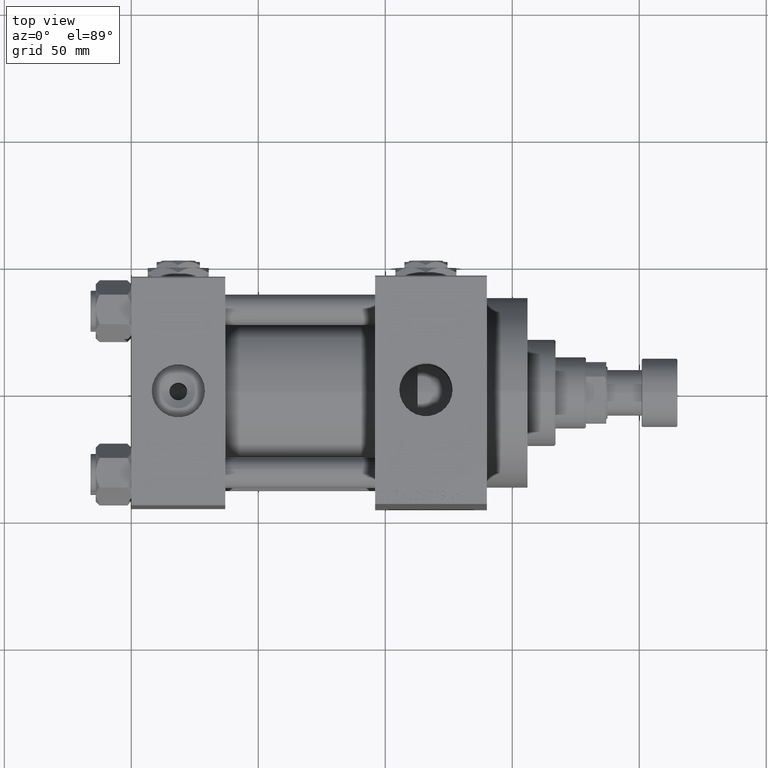
[diagram: clean part render]
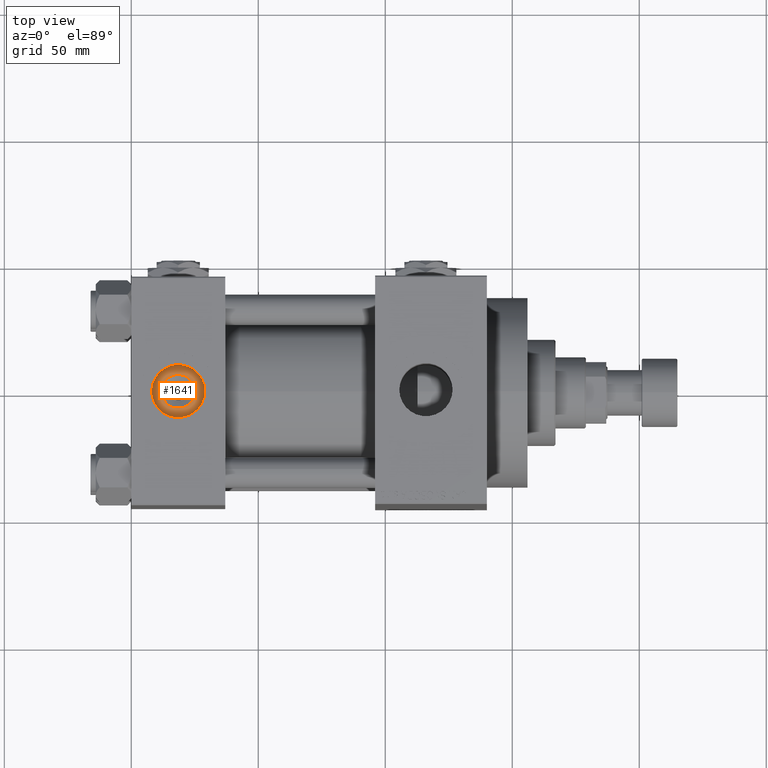
[diagram: same view with one face highlighted and labeled with its STEP entity id]
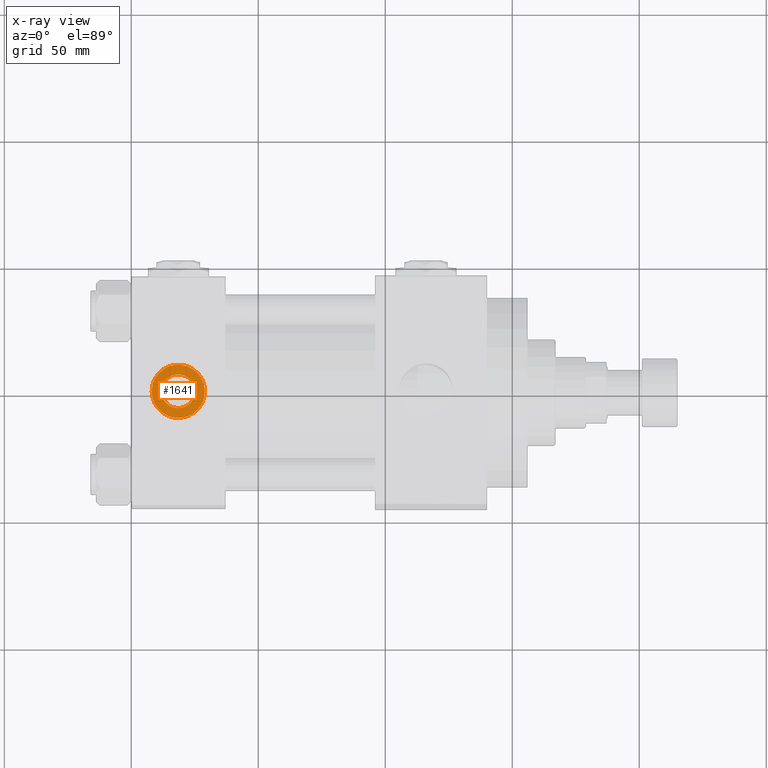
[diagram: x-ray of the same camera — body ghosted, the highlighted face saturated]
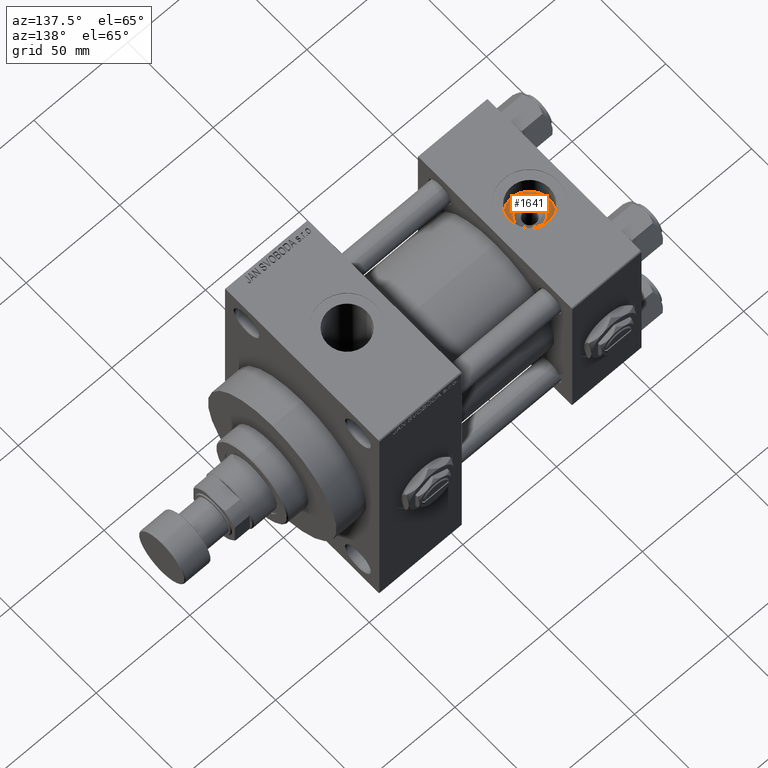
[diagram: same view with one face highlighted and labeled with its STEP entity id]
A machine part, top view. The second image highlights one B-rep face of the part: STEP entity #1641.
The next image is the same camera in x-ray: the body ghosted, the highlighted face saturated — about 0% of this face is hidden behind the body in this view.
A second angle (auxiliary view) of the same face is appended — the face is thin or edge-on in the first view.
In plain terms, the highlighted planar face has unit normal (0, 0, 1).
Its self-contained STEP definition (entity closure, byte-faithful):
#1641 = ADVANCED_FACE ( 'NONE', ( #46162, #34098 ), #15710, .T. ) ;
#2060 = VERTEX_POINT ( 'NONE', #16392 ) ;
#2072 = CIRCLE ( 'NONE', #27796, 10.48000000000000043 ) ;
#2287 = DIRECTION ( 'NONE',  ( 1.000000000000000000, 0.000000000000000000, 0.000000000000000000 ) ) ;
#3242 = DIRECTION ( 'NONE',  ( 1.000000000000000000, 0.000000000000000000, 0.000000000000000000 ) ) ;
#3385 = VERTEX_POINT ( 'NONE', #18249 ) ;
#5275 = ORIENTED_EDGE ( 'NONE', *, *, #35841, .T. ) ;
#9281 = CIRCLE ( 'NONE', #37398, 6.639999999999979252 ) ;
#10415 = DIRECTION ( 'NONE',  ( 1.000000000000000000, 0.000000000000000000, 0.000000000000000000 ) ) ;
#11405 = CARTESIAN_POINT ( 'NONE',  ( 18.50000000000000000, -8.673617379884038628E-15, 34.20000000000000995 ) ) ;
#14388 = CARTESIAN_POINT ( 'NONE',  ( 25.13999999999997925, -8.673617379884038628E-15, 34.20000000000000995 ) ) ;
#14667 = CARTESIAN_POINT ( 'NONE',  ( 8.019999999999999574, -7.390187534377611561E-15, 34.20000000000000995 ) ) ;
#15068 = EDGE_CURVE ( 'NONE', #2060, #23815, #47755, .T. ) ;
#15220 = DIRECTION ( 'NONE',  ( 1.000000000000000000, 0.000000000000000000, -0.000000000000000000 ) ) ;
#15710 = PLANE ( 'NONE',  #35476 ) ;
#16392 = CARTESIAN_POINT ( 'NONE',  ( 11.86000000000001897, -7.860451905250197307E-15, 34.20000000000000995 ) ) ;
#16547 = EDGE_CURVE ( 'NONE', #23815, #2060, #9281, .T. ) ;
#18249 = CARTESIAN_POINT ( 'NONE',  ( 28.98000000000000043, -8.673617379884038628E-15, 34.20000000000000995 ) ) ;
#23093 = CARTESIAN_POINT ( 'NONE',  ( 18.50000000000000000, -8.673617379884038628E-15, 34.20000000000000995 ) ) ;
#23815 = VERTEX_POINT ( 'NONE', #14388 ) ;
#27796 = AXIS2_PLACEMENT_3D ( 'NONE', #11405, #38593, #49397 ) ;
#30164 = DIRECTION ( 'NONE',  ( -0.000000000000000000, -0.000000000000000000, -1.000000000000000000 ) ) ;
#30271 = ORIENTED_EDGE ( 'NONE', *, *, #42216, .T. ) ;
#32024 = ORIENTED_EDGE ( 'NONE', *, *, #16547, .T. ) ;
#32492 = CIRCLE ( 'NONE', #38951, 10.48000000000000043 ) ;
#33697 = DIRECTION ( 'NONE',  ( -0.000000000000000000, -0.000000000000000000, -1.000000000000000000 ) ) ;
#34064 = CARTESIAN_POINT ( 'NONE',  ( 18.50000000000000000, -8.673617379884038628E-15, 34.20000000000000995 ) ) ;
#34098 = FACE_OUTER_BOUND ( 'NONE', #44109, .T. ) ;
#34353 = DIRECTION ( 'NONE',  ( 0.000000000000000000, 0.000000000000000000, 1.000000000000000000 ) ) ;
#35102 = CARTESIAN_POINT ( 'NONE',  ( 18.50000000000000000, -8.673617379884038628E-15, 34.20000000000000995 ) ) ;
#35324 = EDGE_LOOP ( 'NONE', ( #32024, #43552 ) ) ;
#35476 = AXIS2_PLACEMENT_3D ( 'NONE', #35102, #34353, #15220 ) ;
#35841 = EDGE_CURVE ( 'NONE', #3385, #41142, #32492, .T. ) ;
#37398 = AXIS2_PLACEMENT_3D ( 'NONE', #23093, #30164, #3242 ) ;
#38593 = DIRECTION ( 'NONE',  ( 0.000000000000000000, 0.000000000000000000, 1.000000000000000000 ) ) ;
#38951 = AXIS2_PLACEMENT_3D ( 'NONE', #34064, #45378, #10415 ) ;
#41142 = VERTEX_POINT ( 'NONE', #14667 ) ;
#42216 = EDGE_CURVE ( 'NONE', #41142, #3385, #2072, .T. ) ;
#42251 = AXIS2_PLACEMENT_3D ( 'NONE', #49297, #33697, #2287 ) ;
#43552 = ORIENTED_EDGE ( 'NONE', *, *, #15068, .T. ) ;
#44109 = EDGE_LOOP ( 'NONE', ( #5275, #30271 ) ) ;
#45378 = DIRECTION ( 'NONE',  ( 0.000000000000000000, 0.000000000000000000, 1.000000000000000000 ) ) ;
#46162 = FACE_BOUND ( 'NONE', #35324, .T. ) ;
#47755 = CIRCLE ( 'NONE', #42251, 6.639999999999979252 ) ;
#49297 = CARTESIAN_POINT ( 'NONE',  ( 18.50000000000000000, -8.673617379884038628E-15, 34.20000000000000995 ) ) ;
#49397 = DIRECTION ( 'NONE',  ( 1.000000000000000000, 0.000000000000000000, 0.000000000000000000 ) ) ;